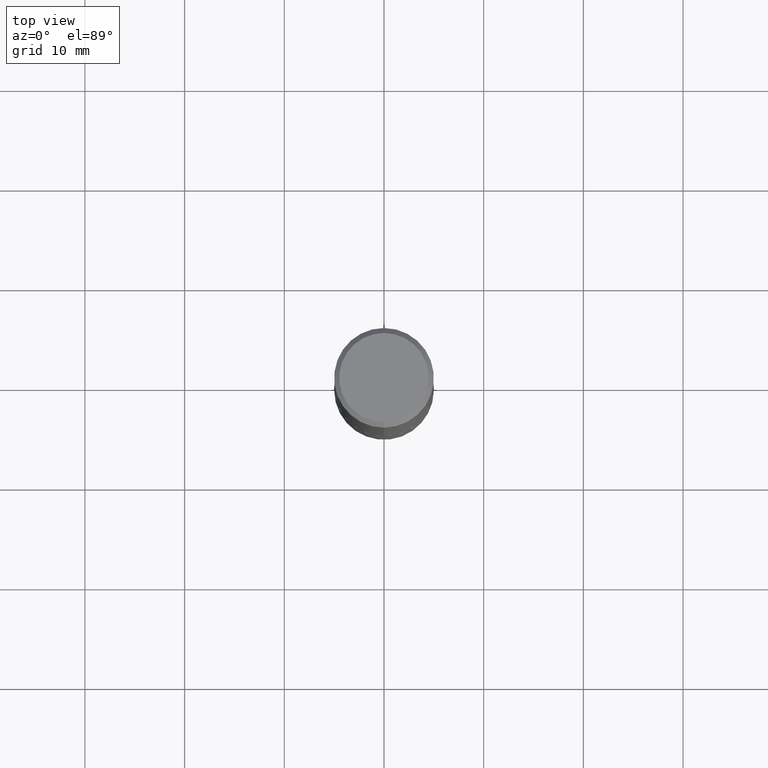
[diagram: clean part render]
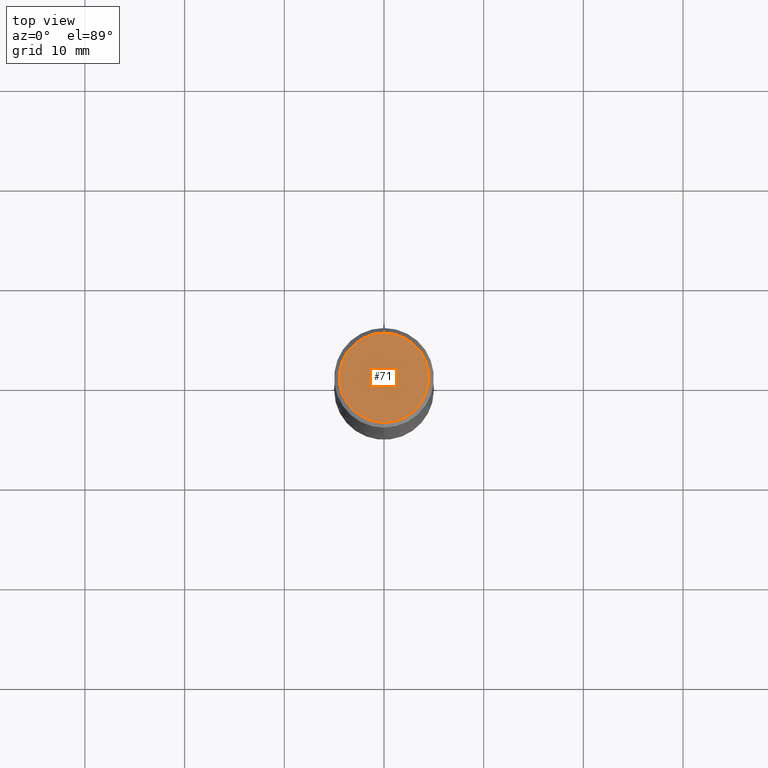
[diagram: same view with one face highlighted and labeled with its STEP entity id]
A machine part, top view. The second image highlights one B-rep face of the part: STEP entity #71.
In plain terms, the highlighted planar face has unit normal (0, -0, -1).
Its self-contained STEP definition (entity closure, byte-faithful):
#1 = DIRECTION ( 'NONE',  ( 2.445768211810956051E-29, -3.491052572945861549E-15, -1.000000000000000000 ) ) ;
#3 = CIRCLE ( 'NONE', #124, 0.1768499999999999794 ) ;
#27 = VERTEX_POINT ( 'NONE', #72 ) ;
#31 = DIRECTION ( 'NONE',  ( -2.445768211810956331E-29, 3.491052572945861944E-15, 1.000000000000000000 ) ) ;
#38 = CARTESIAN_POINT ( 'NONE',  ( -9.377267356501713356E-46, 1.338496966884566499E-31, 3.834078516196907338E-17 ) ) ;
#49 = DIRECTION ( 'NONE',  ( -6.982962677686265922E-15, -1.000000000000000000, 3.491052572945862338E-15 ) ) ;
#71 = ADVANCED_FACE ( 'NONE', ( #298 ), #335, .F. ) ;
#72 = CARTESIAN_POINT ( 'NONE',  ( -1.281884050883610492E-15, -0.1768499999999999794, 6.557334326874447708E-16 ) ) ;
#85 = EDGE_CURVE ( 'NONE', #27, #147, #133, .T. ) ;
#124 = AXIS2_PLACEMENT_3D ( 'NONE', #38, #209, #333 ) ;
#133 = CIRCLE ( 'NONE', #368, 0.1768499999999999794 ) ;
#136 = ORIENTED_EDGE ( 'NONE', *, *, #401, .T. ) ;
#147 = VERTEX_POINT ( 'NONE', #163 ) ;
#163 = CARTESIAN_POINT ( 'NONE',  ( 1.304766576325679099E-15, 0.1768499999999999794, -5.790518623635066240E-16 ) ) ;
#176 = ORIENTED_EDGE ( 'NONE', *, *, #85, .T. ) ;
#196 = CARTESIAN_POINT ( 'NONE',  ( -9.377267356501713356E-46, 1.338496966884566499E-31, 3.834078516196907338E-17 ) ) ;
#209 = DIRECTION ( 'NONE',  ( -2.445768211810956331E-29, 3.491052572945861944E-15, 1.000000000000000000 ) ) ;
#260 = AXIS2_PLACEMENT_3D ( 'NONE', #414, #1, #343 ) ;
#298 = FACE_OUTER_BOUND ( 'NONE', #321, .T. ) ;
#321 = EDGE_LOOP ( 'NONE', ( #136, #176 ) ) ;
#333 = DIRECTION ( 'NONE',  ( -6.982962677686265922E-15, -1.000000000000000000, 3.491052572945862338E-15 ) ) ;
#335 = PLANE ( 'NONE',  #260 ) ;
#343 = DIRECTION ( 'NONE',  ( 6.982962677686265922E-15, 1.000000000000000000, -3.491052572945861549E-15 ) ) ;
#368 = AXIS2_PLACEMENT_3D ( 'NONE', #196, #31, #49 ) ;
#401 = EDGE_CURVE ( 'NONE', #147, #27, #3, .T. ) ;
#414 = CARTESIAN_POINT ( 'NONE',  ( 1.234936949548815998E-15, 0.1768499999999999794, -5.982222549444910867E-16 ) ) ;